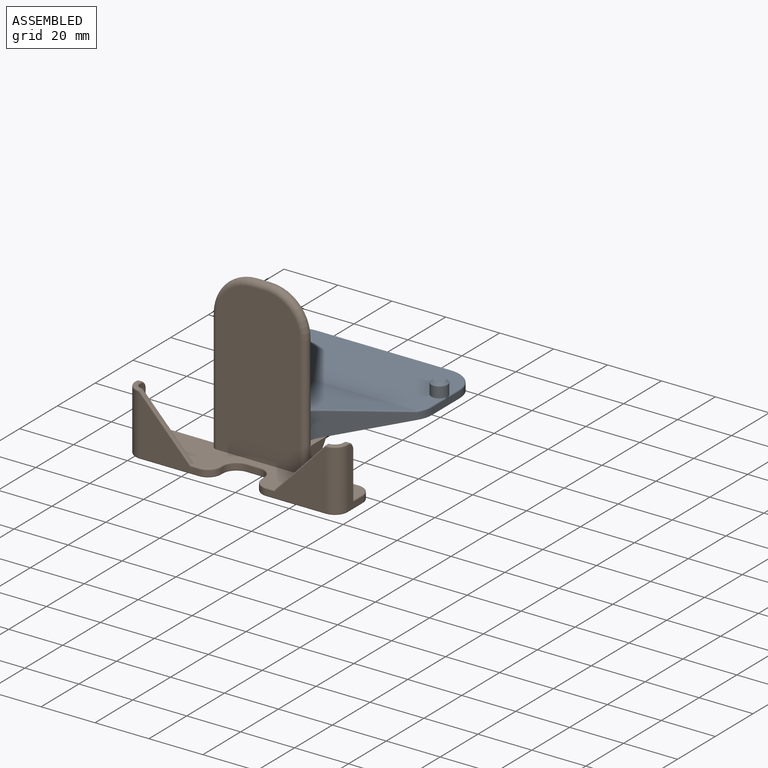
[diagram: assembled view]
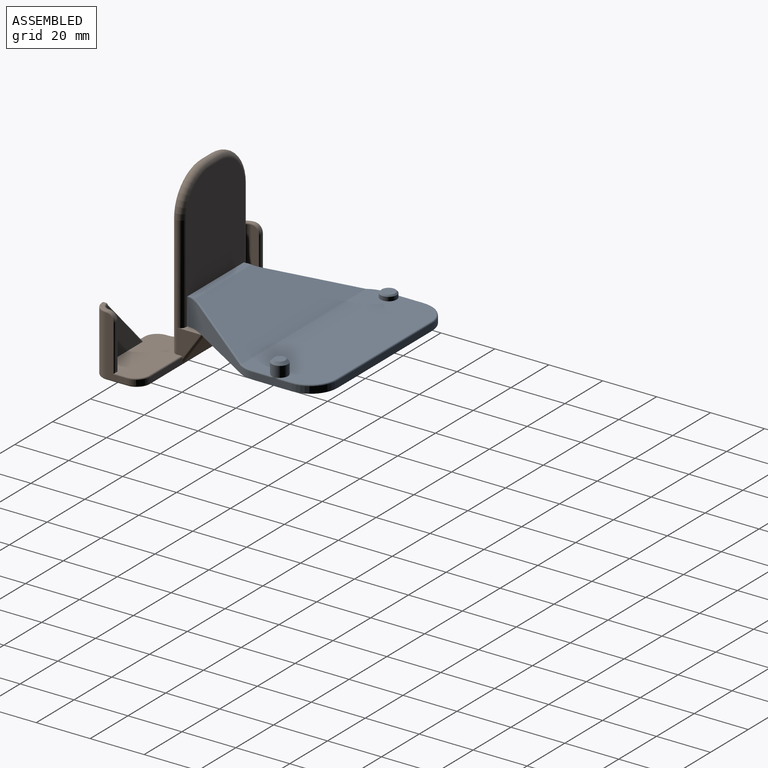
[diagram: assembled view, second angle]
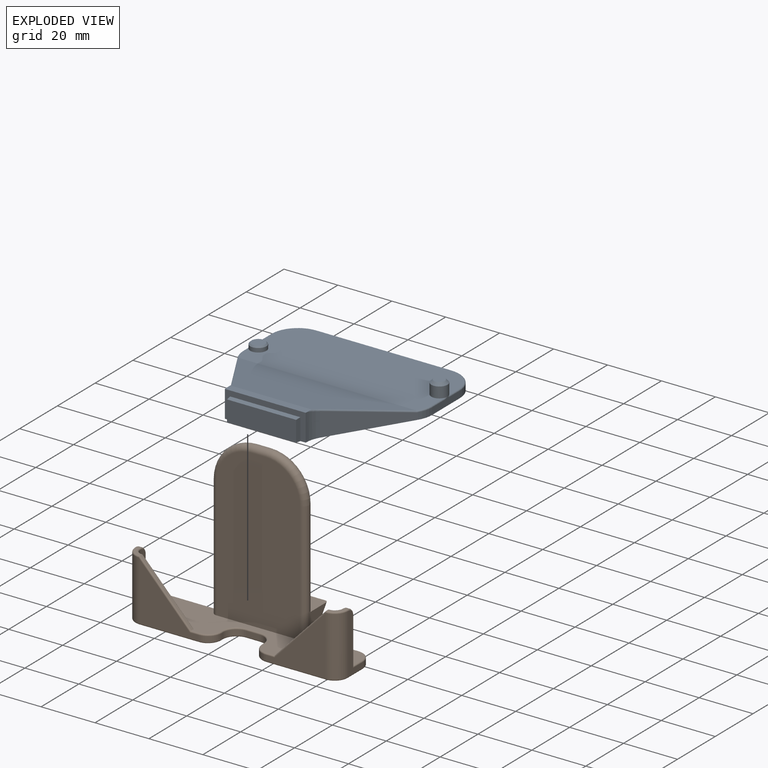
[diagram: exploded view]
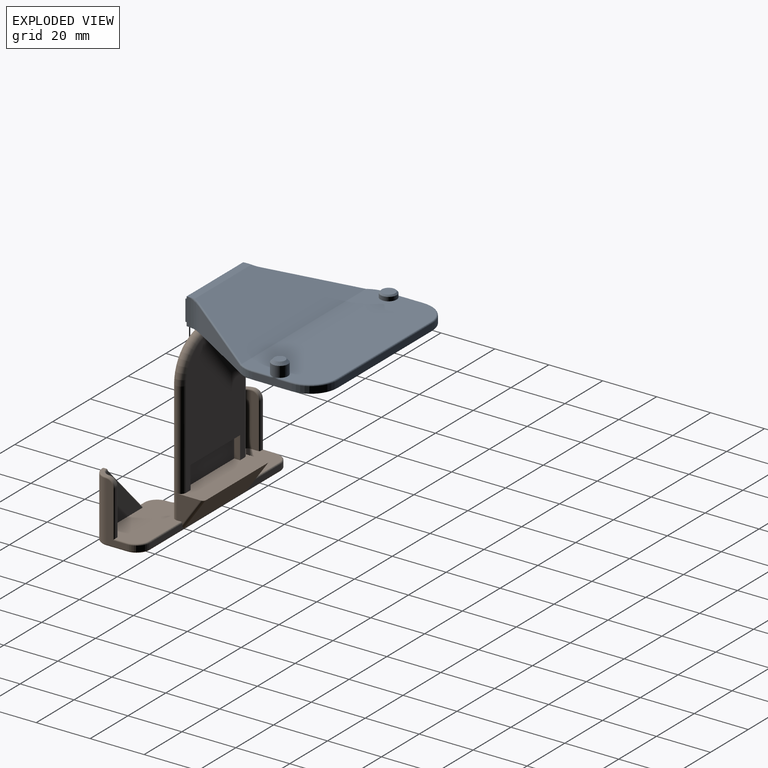
[diagram: exploded view, second angle]
ASSEMBLY  parts=2 mates=2
PART A: 52 faces, bbox 71.6x65.8x10.5 mm
  f0: plane 30x10mm, normal (0,-1,0), area 92mm2, adj f3,f12,f13,f14,f17,f19,f20
  f1: plane 14.69x3mm, normal (1,0,0), area 37.3mm2, adj f3,f23,f28,f30,f32,f36,f37
  f2: plane 69x29.44mm, normal (0,0,1), area 1933.1mm2, adj f6,f7,f31,f32,f33,f34,f35,f37
  f3: plane 70x63mm, normal (0,0,-1), area 3597.5mm2, adj f0,f1,f4,f5,f12,f13,f15,f16
  f4: plane 50x2.5mm, normal (0,1,0), area 125mm2, adj f3,f27,f28,f35
  f5: plane 14.69x3mm, normal (-1,0,0), area 37.3mm2, adj f3,f24,f27,f29,f31,f50,f51
  f6: cylinder r=3mm len=6mm, axis (0,0,-1), area 28.3mm2, adj f2,f10,f29,f51
  f7: cylinder r=3mm len=6mm, axis (0,0,-1), area 75.4mm2, adj f2,f11,f30,f36
  f8: plane 4x4mm, normal (0,0,1), area 12.6mm2, adj f11
  f9: plane 5x5mm, normal (0,0,1), area 19.6mm2, adj f10
  f10: cone r=3mm half-angle=45deg, axis (0,0,-1), area 12.2mm2, adj f6,f9
  f11: cone r=2mm half-angle=45deg, axis (0,0,-1), area 22.2mm2, adj f7,f8
  f12: plane 10x0.17mm, normal (-1,0,0), area 1.7mm2, adj f0,f3,f14,f25
  f13: plane 10x0.17mm, normal (1,0,0), area 1.7mm2, adj f0,f3,f14,f26
  f14: plane 30.16x2.94mm, normal (0,0,1), area 88.5mm2, adj f0,f12,f13,f25,f26,f39,f42,f44
  f15: plane 27.66x17.03mm, normal (0.85,-0.52,0), area 183.1mm2, adj f3,f23,f26,f40,f41,f43
  f16: plane 27.66x17.03mm, normal (-0.85,-0.52,0), area 183.1mm2, adj f3,f24,f25,f46,f47,f48
  f17: plane 8x2mm, normal (-1,-0.09,0), area 15.7mm2, adj f0,f18,f20,f21
  f18: plane 26x2mm, normal (0,-0.09,-1), area 51.8mm2, adj f3,f17,f19,f21
  f19: plane 8x2mm, normal (1,-0.09,0), area 15.7mm2, adj f0,f18,f20,f21
  f20: plane 26x2mm, normal (0,-0.09,1), area 51.8mm2, adj f0,f17,f19,f21
  f21: plane 25.65x7.65mm, normal (0,-1,0), area 196.2mm2, adj f17,f18,f19,f20
  f22: plane 65.56x29.89mm, normal (0,0.23,0.97), area 1448.3mm2, adj f39,f41,f42,f44,f45,f46
  f23: cylinder r=10mm len=5.24mm, axis (0,0,-1), area 13.8mm2, adj f1,f3,f15,f38
  f24: cylinder r=10mm len=5.24mm, axis (0,0,1), area 13.8mm2, adj f3,f5,f16,f49
  f25: cylinder r=10mm len=10mm, axis (0,0,1), area 52.4mm2, adj f3,f12,f14,f16,f44
  f26: cylinder r=10mm len=10mm, axis (0,0,1), area 52.4mm2, adj f3,f13,f14,f15,f39
  f27: cylinder r=10mm len=10mm, axis (0,0,1), area 39.3mm2, adj f3,f4,f5,f33
  f28: cylinder r=10mm len=10mm, axis (0,0,1), area 39.3mm2, adj f1,f3,f4,f34
  f29: bspline ~1.85x0.59mm, area 0.4mm2, adj f5,f6,f31
  f30: bspline ~1.85x0.59mm, area 0.4mm2, adj f1,f7,f32
  f31: cylinder r=0.5mm len=9.34mm, axis (0,1,0), area 7.3mm2, adj f2,f5,f29,f33
  f32: cylinder r=0.5mm len=4.84mm, axis (0,-1,0), area 3.8mm2, adj f1,f2,f30,f34
  f33: torus R=9.5mm, axis (0,0,1), area 12.1mm2, adj f2,f27,f31,f35
  f34: torus R=9.5mm, axis (0,0,1), area 12.1mm2, adj f2,f28,f32,f35
  f35: cylinder r=0.5mm len=50mm, axis (1,0,0), area 39.3mm2, adj f2,f4,f33,f34
  f36: bspline ~1.85x0.59mm, area 0.4mm2, adj f1,f7,f37
  f37: cylinder r=0.5mm len=6.53mm, axis (0,-1,0), area 5.1mm2, adj f1,f2,f36,f38
  f38: torus R=9.5mm, axis (0,0,1), area 4.3mm2, adj f2,f23,f37,f40
  f39: bspline ~5.02x1.97mm, area 3.1mm2, adj f14,f22,f26,f41,f42
  f40: cylinder r=0.5mm len=0.59mm, axis (0.52,0.85,0), area 0.3mm2, adj f2,f15,f38,f43
  f41: cylinder r=0.5mm len=27.53mm, axis (0.51,0.84,-0.19), area 27.5mm2, adj f15,f22,f39,f43
  f42: cylinder r=0.5mm len=29.92mm, axis (-1,0,0), area 3.4mm2, adj f14,f22,f39,f44
  f43: bspline ~0.72x0.65mm, area 0.2mm2, adj f15,f40,f41,f45
  f44: bspline ~5.02x1.97mm, area 3.1mm2, adj f14,f22,f25,f42,f46
  f45: cylinder r=0.5mm len=65.84mm, axis (1,0,0), area 7.5mm2, adj f2,f22,f43,f47
  f46: cylinder r=0.5mm len=27.53mm, axis (-0.51,0.84,-0.19), area 27.5mm2, adj f16,f22,f44,f47
  f47: bspline ~0.79x0.77mm, area 0.2mm2, adj f16,f45,f46,f48
  f48: cylinder r=0.5mm len=0.59mm, axis (0.52,-0.85,0), area 0.3mm2, adj f2,f16,f47,f49
  f49: torus R=9.5mm, axis (0,0,1), area 4.3mm2, adj f2,f24,f48,f50
  f50: cylinder r=0.5mm len=2.03mm, axis (0,1,0), area 1.6mm2, adj f2,f5,f49,f51
  f51: bspline ~1.85x0.59mm, area 0.4mm2, adj f5,f6,f50
PART B: 98 faces, bbox 80.6x27x65 mm
  f0: plane 69.6x2.6mm, normal (0,1,0), area 71.4mm2, adj f2,f3,f23,f24,f25,f53,f61,f84
  f1: plane 49x31mm, normal (0,1,0), area 1226.4mm2, adj f22,f38,f39,f40,f41,f42,f43,f44
  f2: plane 9.68x8.78mm, normal (-1,0,0), area 50.9mm2, adj f0,f13,f22,f38,f61,f96
  f3: plane 9.68x8.78mm, normal (1,0,0), area 50.9mm2, adj f0,f13,f22,f39,f53,f97
  f4: plane 58x31mm, normal (0,-1,0), area 1725.5mm2, adj f13,f38,f39,f40,f41,f42
  f5: plane 22x7.8mm, normal (1,0,0), area 64.3mm2, adj f25,f26,f56,f57,f58,f85
  f6: plane 22x21.77mm, normal (0,-1,0), area 229.7mm2, adj f26,f27,f52,f81,f95
  f7: plane 2x0.8mm, normal (-1,0,0), area 1.6mm2, adj f27,f28,f77,f93
  f8: plane 5x2mm, normal (0,-1,0), area 10mm2, adj f28,f29,f73,f91
  f9: plane 2x0.8mm, normal (1,0,0), area 1.6mm2, adj f29,f30,f72,f89
  f10: plane 22x21.77mm, normal (0,-1,0), area 229.7mm2, adj f30,f31,f59,f76,f87
  f11: plane 22x7.8mm, normal (-1,0,0), area 64.3mm2, adj f24,f31,f62,f64,f65,f80
  f12: plane 78x16.8mm, normal (0,0,-1), area 1124.5mm2, adj f71,f72,f73,f74,f75,f76,f77,f78
  f13: plane 78.2x17mm, normal (0,0,1), area 920.3mm2, adj f2,f3,f4,f14,f15,f16,f18,f19
  f14: plane 17x1mm, normal (0,1,0), area 17mm2, adj f13,f35,f64,f70
  f15: plane 19.27x18.31mm, normal (0,1,0), area 176.5mm2, adj f13,f34,f66
  f16: plane 19.5x2.5mm, normal (1,0,0), area 47.4mm2, adj f13,f34,f69,f70
  f17: plane 4.5x4.5mm, normal (0,0,1), area 6.3mm2, adj f35,f36,f60,f68
  f18: plane 17x1mm, normal (0,1,0), area 17mm2, adj f13,f33,f51,f58
  f19: plane 19.5x2.5mm, normal (-1,0,0), area 47.4mm2, adj f13,f32,f50,f51
  f20: plane 20.21x19.08mm, normal (0,1,0), area 176.5mm2, adj f13,f32,f47
  f21: plane 4.5x4.5mm, normal (0,0,1), area 6.3mm2, adj f33,f37,f49,f54
  f22: plane 35.29x10.49mm, normal (0,0,1), area 338.8mm2, adj f1,f2,f3,f23,f38,f39,f43,f44
  f23: plane 33x11.43mm, normal (0,0.82,-0.57), area 460.3mm2, adj f0,f22,f96,f97
  f24: cylinder r=5mm len=5mm, axis (0,0,-1), area 15.7mm2, adj f0,f11,f63,f82
  f25: cylinder r=5mm len=5mm, axis (0,0,1), area 15.7mm2, adj f0,f5,f55,f86
  f26: cylinder r=5mm len=22mm, axis (0,0,-1), area 172.8mm2, adj f5,f6,f52,f54,f83
  f27: cylinder r=5mm len=5mm, axis (0,0,-1), area 15.7mm2, adj f6,f7,f79,f94
  f28: cylinder r=5mm len=5mm, axis (0,0,1), area 15.7mm2, adj f7,f8,f75,f92
  f29: cylinder r=5mm len=5mm, axis (0,0,-1), area 15.7mm2, adj f8,f9,f71,f90
  f30: cylinder r=5mm len=5mm, axis (0,0,1), area 15.7mm2, adj f9,f10,f74,f88
  f31: cylinder r=5mm len=22mm, axis (0,0,1), area 172.8mm2, adj f10,f11,f59,f60,f78
  f32: cylinder r=3mm len=19.5mm, axis (0,0,-1), area 92.6mm2, adj f13,f19,f20,f48,f49
  f33: cylinder r=3mm len=3mm, axis (1,0,0), area 4.7mm2, adj f18,f21,f50,f56
  f34: cylinder r=3mm len=19.5mm, axis (0,0,-1), area 91.9mm2, adj f13,f15,f16,f67,f68
  f35: cylinder r=3mm len=3mm, axis (1,0,0), area 4.7mm2, adj f14,f17,f62,f69
  f36: plane 20x19mm, normal (0.72,0,0.69), area 27.6mm2, adj f13,f17,f59,f66,f67,f68
  f37: plane 20.77x19.77mm, normal (-0.72,0,0.69), area 27.6mm2, adj f13,f21,f47,f48,f49,f52
  f38: cylinder r=2mm len=45mm, axis (0,0,1), area 254.5mm2, adj f1,f2,f4,f13,f22,f40
  f39: cylinder r=2mm len=45mm, axis (0,0,-1), area 254.5mm2, adj f1,f3,f4,f13,f22,f41
  f40: torus R=13mm, axis (0,-1,0), area 140.9mm2, adj f1,f4,f38,f42
  f41: torus R=13mm, axis (0,-1,0), area 140.9mm2, adj f1,f4,f39,f42
  f42: cylinder r=2mm len=5mm, axis (1,0,0), area 31.4mm2, adj f1,f4,f40,f41
  f43: plane 8.4x2.2mm, normal (-1,0,0), area 18.5mm2, adj f1,f22,f45,f46
  f44: plane 8.4x2.2mm, normal (1,0,0), area 18.5mm2, adj f1,f22,f45,f46
  f45: plane 26.2x2.2mm, normal (0,0,-1), area 57.6mm2, adj f1,f43,f44,f46
  f46: plane 26.2x8.4mm, normal (0,1,0), area 220.1mm2, adj f22,f43,f44,f45
  f47: cylinder r=0.5mm len=19.96mm, axis (-0.69,0,-0.72), area 10.5mm2, adj f13,f20,f37
  f48: bspline ~1.15x1.04mm, area 0.3mm2, adj f32,f37,f49
  f49: torus R=3.5mm, axis (0,0,1), area 3.9mm2, adj f21,f32,f37,f48,f50
  f50: torus R=2.5mm, axis (1,0,0), area 3.5mm2, adj f19,f33,f49,f51
  f51: cylinder r=0.5mm len=17mm, axis (0,0,-1), area 13.4mm2, adj f13,f18,f19,f50
  f52: cylinder r=0.5mm len=20.5mm, axis (0.69,0,0.72), area 21.6mm2, adj f6,f26,f37,f54,f95
  f53: cylinder r=0.5mm len=17mm, axis (1,0,0), area 13.4mm2, adj f0,f3,f13,f55
  f54: torus R=4.5mm, axis (0,0,1), area 5.9mm2, adj f21,f26,f52,f56
  f55: torus R=4.5mm, axis (0,0,-1), area 5.9mm2, adj f13,f25,f53,f57
  f56: torus R=2.5mm, axis (-1,0,0), area 3.5mm2, adj f5,f33,f54,f58
  f57: cylinder r=0.5mm len=5.3mm, axis (0,-1,0), area 4mm2, adj f5,f13,f55,f58
  f58: cylinder r=0.5mm len=17.5mm, axis (0,0,-1), area 13.5mm2, adj f5,f18,f56,f57
  f59: cylinder r=0.5mm len=20.5mm, axis (-0.69,0,0.72), area 21.6mm2, adj f10,f31,f36,f60,f87
  f60: torus R=4.5mm, axis (0,0,1), area 5.9mm2, adj f17,f31,f59,f62
  f61: cylinder r=0.5mm len=17mm, axis (1,0,0), area 13.4mm2, adj f0,f2,f13,f63
  f62: torus R=2.5mm, axis (-1,0,0), area 3.5mm2, adj f11,f35,f60,f64
  f63: torus R=4.5mm, axis (0,0,-1), area 5.9mm2, adj f13,f24,f61,f65
  f64: cylinder r=0.5mm len=17.5mm, axis (0,0,-1), area 13.5mm2, adj f11,f14,f62,f65
  f65: cylinder r=0.5mm len=5.3mm, axis (0,1,0), area 4mm2, adj f11,f13,f63,f64
  f66: cylinder r=0.5mm len=19.96mm, axis (-0.69,0,0.72), area 21.1mm2, adj f13,f15,f36,f67
  f67: bspline ~1.63x1.49mm, area 0.3mm2, adj f34,f36,f66,f68
  f68: torus R=3.5mm, axis (0,0,1), area 3.9mm2, adj f17,f34,f36,f67,f69
  f69: torus R=2.5mm, axis (1,0,0), area 3.5mm2, adj f16,f35,f68,f70
  f70: cylinder r=0.5mm len=17mm, axis (0,0,-1), area 13.4mm2, adj f13,f14,f16,f69
  f71: torus R=5.5mm, axis (0,0,-1), area 6.4mm2, adj f12,f29,f72,f73
  f72: cylinder r=0.5mm len=0.8mm, axis (0,1,0), area 0.6mm2, adj f9,f12,f71,f74
  f73: cylinder r=0.5mm len=5mm, axis (1,0,0), area 3.9mm2, adj f8,f12,f71,f75
  f74: torus R=4.5mm, axis (0,0,-1), area 5.9mm2, adj f12,f30,f72,f76
  f75: torus R=5.5mm, axis (0,0,-1), area 6.4mm2, adj f12,f28,f73,f77
  f76: cylinder r=0.5mm len=22mm, axis (1,0,0), area 17.3mm2, adj f10,f12,f74,f78
  f77: cylinder r=0.5mm len=0.8mm, axis (0,-1,0), area 0.6mm2, adj f7,f12,f75,f79
  f78: torus R=4.5mm, axis (0,0,-1), area 5.9mm2, adj f12,f31,f76,f80
  f79: torus R=4.5mm, axis (0,0,-1), area 5.9mm2, adj f12,f27,f77,f81
  f80: cylinder r=0.5mm len=7.8mm, axis (0,-1,0), area 6.1mm2, adj f11,f12,f78,f82
  f81: cylinder r=0.5mm len=22mm, axis (1,0,0), area 17.3mm2, adj f6,f12,f79,f83
  f82: torus R=4.5mm, axis (0,0,-1), area 5.9mm2, adj f12,f24,f80,f84
  f83: torus R=4.5mm, axis (0,0,-1), area 5.9mm2, adj f12,f26,f81,f85
  f84: cylinder r=0.5mm len=69mm, axis (-1,0,0), area 54.2mm2, adj f0,f12,f82,f86
  f85: cylinder r=0.5mm len=7.8mm, axis (0,1,0), area 6.1mm2, adj f5,f12,f83,f86
  f86: torus R=4.5mm, axis (0,0,-1), area 5.9mm2, adj f12,f25,f84,f85
  f87: cylinder r=0.5mm len=3.21mm, axis (-1,0,0), area 2.4mm2, adj f10,f13,f59,f88
  f88: torus R=4.5mm, axis (0,0,-1), area 5.9mm2, adj f13,f30,f87,f89
  f89: cylinder r=0.5mm len=0.8mm, axis (0,-1,0), area 0.6mm2, adj f9,f13,f88,f90
  f90: torus R=5.5mm, axis (0,0,-1), area 6.4mm2, adj f13,f29,f89,f91
  f91: cylinder r=0.5mm len=5mm, axis (-1,0,0), area 3.9mm2, adj f8,f13,f90,f92
  f92: torus R=5.5mm, axis (0,0,-1), area 6.4mm2, adj f13,f28,f91,f93
  f93: cylinder r=0.5mm len=0.8mm, axis (0,1,0), area 0.6mm2, adj f7,f13,f92,f94
  f94: torus R=4.5mm, axis (0,0,-1), area 5.9mm2, adj f13,f27,f93,f95
  f95: cylinder r=0.5mm len=3.21mm, axis (-1,0,0), area 2.4mm2, adj f6,f13,f52,f94
  f96: cylinder r=1mm len=12mm, axis (0,0.57,0.82), area 20.2mm2, adj f0,f2,f22,f23
  f97: cylinder r=1mm len=12mm, axis (0,-0.57,-0.82), area 20.2mm2, adj f0,f3,f22,f23
PLACE A at identity fixed
PLACE B t=(7.58,-20.3,-9)mm
MATE planar B.f22 <-> A.f3  axis (0,0,1) through (7.58,-17.2,0)mm
MATE planar B.f46 <-> A.f21  axis (0,1,0) through (7.58,-22.5,4.2)mm
